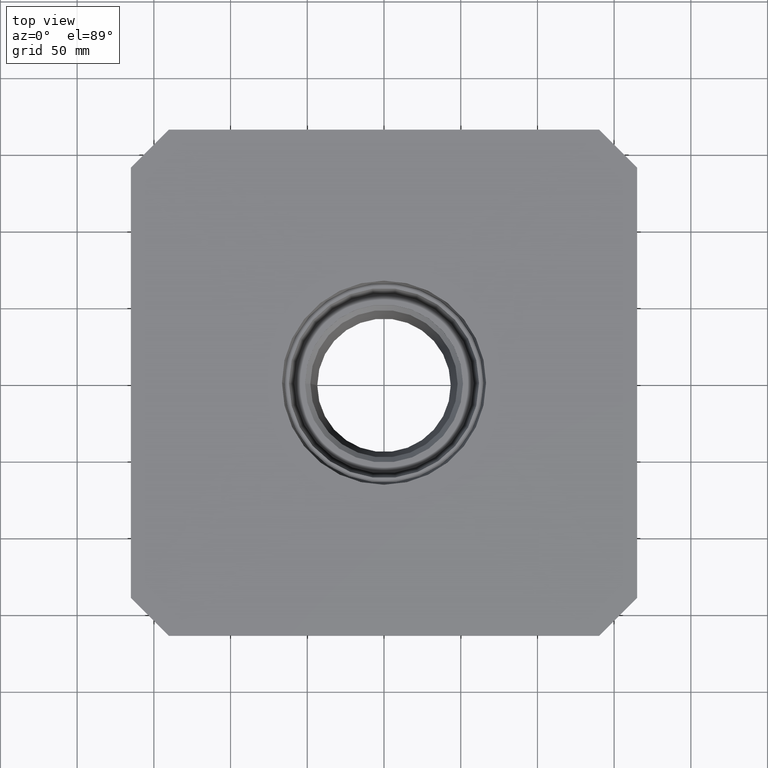
[diagram: clean part render]
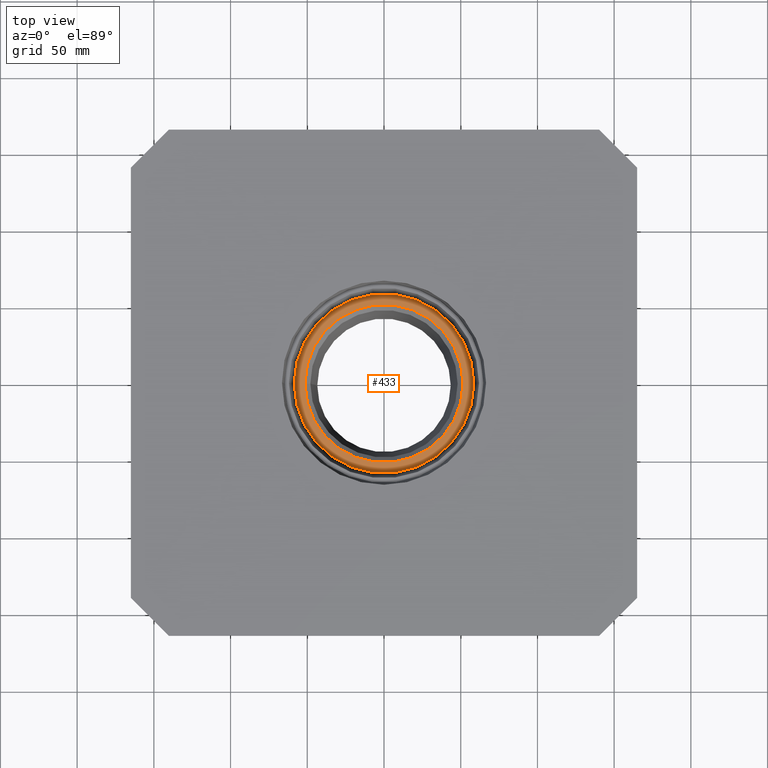
[diagram: same view with one face highlighted and labeled with its STEP entity id]
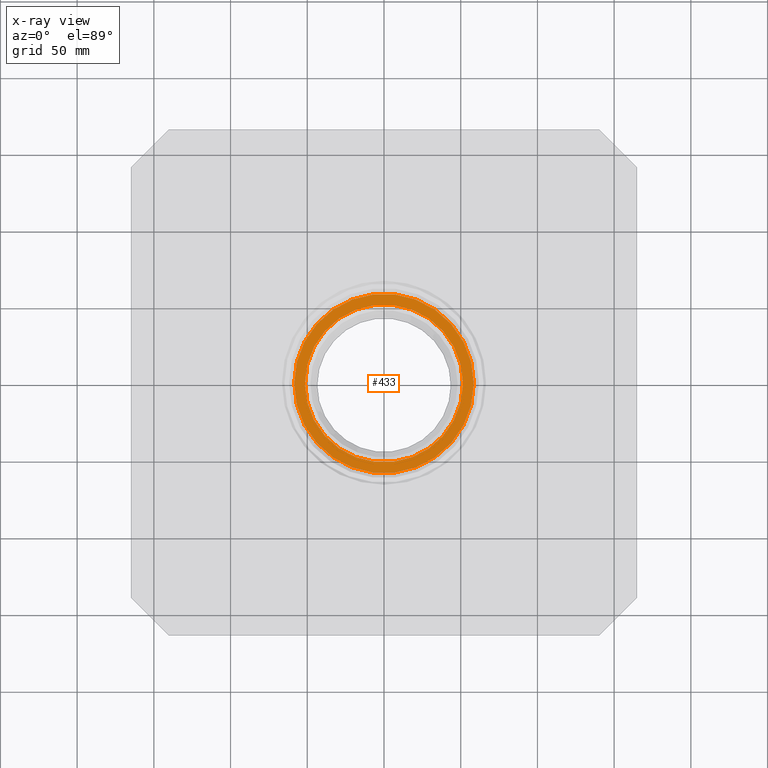
[diagram: x-ray of the same camera — body ghosted, the highlighted face saturated]
A machine part, top view. The second image highlights one B-rep face of the part: STEP entity #433.
The next image is the same camera in x-ray: the body ghosted, the highlighted face saturated — about 0% of this face is hidden behind the body in this view.
In plain terms, the highlighted planar face has unit normal (0, 0, 1).
Its self-contained STEP definition (entity closure, byte-faithful):
#41=CIRCLE('',#489,58.5);
#42=CIRCLE('',#491,51.5);
#112=ORIENTED_EDGE('',*,*,#190,.T.);
#113=ORIENTED_EDGE('',*,*,#189,.F.);
#189=EDGE_CURVE('',#228,#228,#41,.T.);
#190=EDGE_CURVE('',#229,#229,#42,.T.);
#228=VERTEX_POINT('',#733);
#229=VERTEX_POINT('',#736);
#316=EDGE_LOOP('',(#112));
#317=EDGE_LOOP('',(#113));
#372=FACE_BOUND('',#316,.T.);
#373=FACE_BOUND('',#317,.T.);
#410=PLANE('',#490);
#433=ADVANCED_FACE('',(#372,#373),#410,.T.);
#489=AXIS2_PLACEMENT_3D('',#732,#599,#600);
#490=AXIS2_PLACEMENT_3D('',#734,#601,#602);
#491=AXIS2_PLACEMENT_3D('',#735,#603,#604);
#599=DIRECTION('',(0.,0.,-1.));
#600=DIRECTION('',(-1.,0.,0.));
#601=DIRECTION('',(0.,0.,1.));
#602=DIRECTION('',(1.,0.,0.));
#603=DIRECTION('',(0.,0.,-1.));
#604=DIRECTION('',(-1.,0.,0.));
#732=CARTESIAN_POINT('',(0.,0.,-28.657));
#733=CARTESIAN_POINT('',(-58.5,0.,-28.657));
#734=CARTESIAN_POINT('',(-58.5,0.,-28.657));
#735=CARTESIAN_POINT('',(0.,0.,-28.657));
#736=CARTESIAN_POINT('',(-51.5,0.,-28.657));